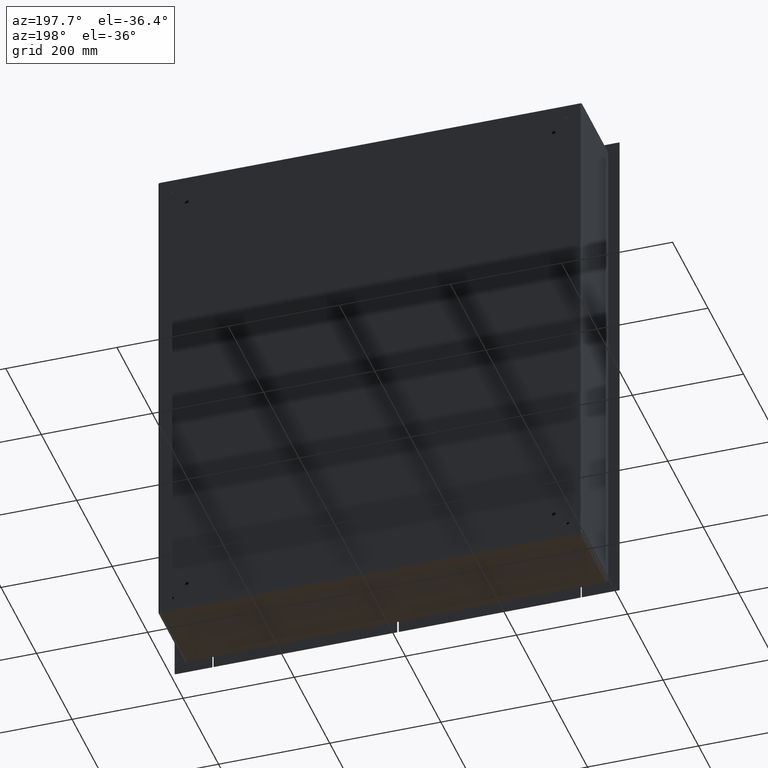
[diagram: clean part render]
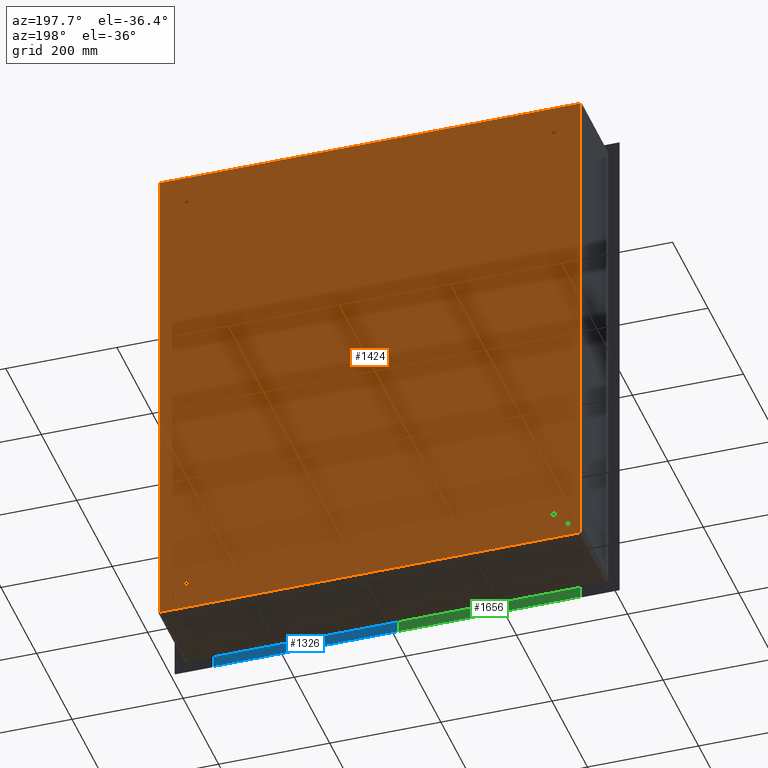
[diagram: same view with three faces highlighted in distinct colors, each labeled with its STEP entity id]
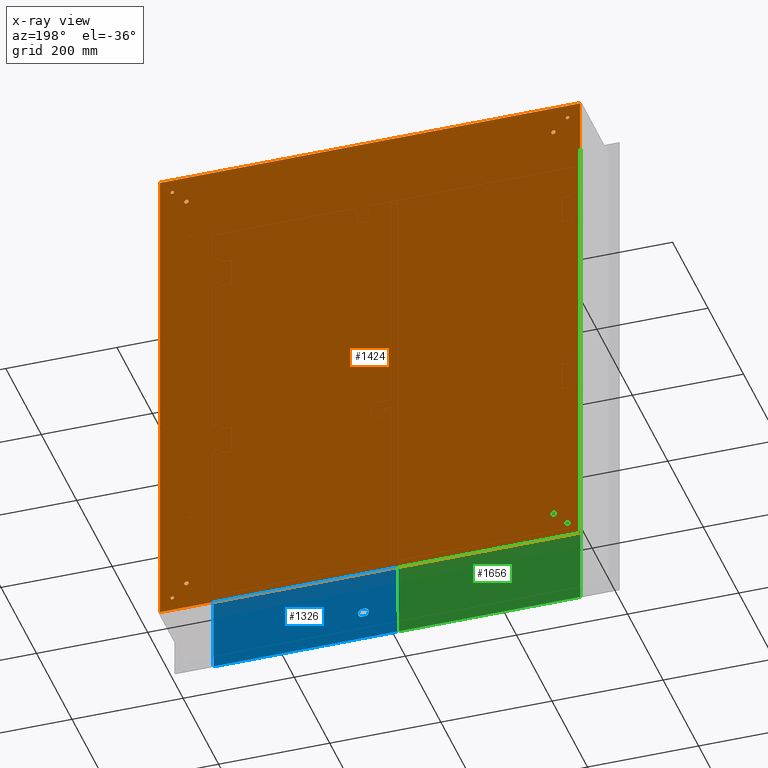
[diagram: x-ray of the same camera — body ghosted, the three highlighted faces saturated]
A machine part, auxiliary view with three faces highlighted in distinct colors.
The next image is the same camera in x-ray (body ghosted, the three faces saturated) — at least one of them is partly hidden behind the body in this view.
Their STEP definitions:

[orange] entity #1424 — the highlighted planar face has unit normal (0, -1, 0).
#1424 = ADVANCED_FACE( '', ( #3018, #3019, #3020, #3021, #3022, #3023, #3024, #3025, #3026 ), #3027, .F. );
#3018 = FACE_BOUND( '', #12370, .T. );
#3019 = FACE_BOUND( '', #12371, .T. );
#3020 = FACE_BOUND( '', #12372, .T. );
#3021 = FACE_BOUND( '', #12373, .T. );
#3022 = FACE_BOUND( '', #12374, .T. );
#3023 = FACE_BOUND( '', #12375, .T. );
#3024 = FACE_BOUND( '', #12376, .T. );
#3025 = FACE_BOUND( '', #12377, .T. );
#3026 = FACE_OUTER_BOUND( '', #12378, .T. );
#3027 = PLANE( '', #12379 );
#12370 = EDGE_LOOP( '', ( #35182 ) );
#12371 = EDGE_LOOP( '', ( #35183 ) );
#12372 = EDGE_LOOP( '', ( #35184 ) );
#12373 = EDGE_LOOP( '', ( #35185 ) );
#12374 = EDGE_LOOP( '', ( #35186 ) );
#12375 = EDGE_LOOP( '', ( #35187 ) );
#12376 = EDGE_LOOP( '', ( #35188 ) );
#12377 = EDGE_LOOP( '', ( #35189 ) );
#12378 = EDGE_LOOP( '', ( #35190, #35191, #35192, #35193 ) );
#12379 = AXIS2_PLACEMENT_3D( '', #35194, #35195, #35196 );
#35182 = ORIENTED_EDGE( '', *, *, #39561, .F. );
#35183 = ORIENTED_EDGE( '', *, *, #39097, .F. );
#35184 = ORIENTED_EDGE( '', *, *, #39677, .F. );
#35185 = ORIENTED_EDGE( '', *, *, #39678, .F. );
#35186 = ORIENTED_EDGE( '', *, *, #39679, .F. );
#35187 = ORIENTED_EDGE( '', *, *, #39680, .F. );
#35188 = ORIENTED_EDGE( '', *, *, #39681, .F. );
#35189 = ORIENTED_EDGE( '', *, *, #39559, .F. );
#35190 = ORIENTED_EDGE( '', *, *, #39682, .F. );
#35191 = ORIENTED_EDGE( '', *, *, #39683, .T. );
#35192 = ORIENTED_EDGE( '', *, *, #39483, .F. );
#35193 = ORIENTED_EDGE( '', *, *, #39503, .T. );
#35194 = CARTESIAN_POINT( '', ( 0.000000000000000, 0.000000000000000, 0.000000000000000 ) );
#35195 = DIRECTION( '', ( 0.000000000000000, -1.00000000000000, 0.000000000000000 ) );
#35196 = DIRECTION( '', ( 0.000000000000000, 0.000000000000000, -1.00000000000000 ) );
#39097 = EDGE_CURVE( '', #41266, #41266, #41267, .F. );
#39483 = EDGE_CURVE( '', #41928, #41930, #41931, .T. );
#39503 = EDGE_CURVE( '', #41928, #41960, #41961, .T. );
#39559 = EDGE_CURVE( '', #42049, #42049, #42050, .F. );
#39561 = EDGE_CURVE( '', #42052, #42052, #42053, .F. );
#39677 = EDGE_CURVE( '', #42233, #42233, #42234, .F. );
#39678 = EDGE_CURVE( '', #42235, #42235, #42236, .F. );
#39679 = EDGE_CURVE( '', #42237, #42237, #42238, .F. );
#39680 = EDGE_CURVE( '', #42239, #42239, #42240, .F. );
#39681 = EDGE_CURVE( '', #42241, #42241, #42242, .F. );
#39682 = EDGE_CURVE( '', #42243, #41960, #42244, .T. );
#39683 = EDGE_CURVE( '', #42243, #41930, #42245, .T. );
#41266 = VERTEX_POINT( '', #44664 );
#41267 = CIRCLE( '', #44665, 3.96240000000000 );
#41928 = VERTEX_POINT( '', #46141 );
#41930 = VERTEX_POINT( '', #46143 );
#41931 = LINE( '', #46144, #46145 );
#41960 = VERTEX_POINT( '', #46202 );
#41961 = LINE( '', #46203, #46204 );
#42049 = VERTEX_POINT( '', #46400 );
#42050 = CIRCLE( '', #46401, 3.17500000000000 );
#42052 = VERTEX_POINT( '', #46403 );
#42053 = CIRCLE( '', #46404, 3.96240000000000 );
#42233 = VERTEX_POINT( '', #46862 );
#42234 = CIRCLE( '', #46863, 3.96240000000000 );
#42235 = VERTEX_POINT( '', #46864 );
#42236 = CIRCLE( '', #46865, 3.96240000000000 );
#42237 = VERTEX_POINT( '', #46866 );
#42238 = CIRCLE( '', #46867, 3.17500000000000 );
#42239 = VERTEX_POINT( '', #46868 );
#42240 = CIRCLE( '', #46869, 3.17500000000000 );
#42241 = VERTEX_POINT( '', #46870 );
#42242 = CIRCLE( '', #46871, 3.17500000000000 );
#42243 = VERTEX_POINT( '', #46872 );
#42244 = LINE( '', #46873, #46874 );
#42245 = LINE( '', #46875, #46876 );
#44664 = CARTESIAN_POINT( '', ( 330.200000000000, 0.000000000000000, -410.362400000000 ) );
#44665 = AXIS2_PLACEMENT_3D( '', #50587, #50588, #50589 );
#46141 = CARTESIAN_POINT( '', ( 378.282200000000, 0.000000000000000, 457.200000000000 ) );
#46143 = CARTESIAN_POINT( '', ( -378.282200000000, 0.000000000000000, 457.200000000000 ) );
#46144 = CARTESIAN_POINT( '', ( 381.000000000000, 0.000000000000000, 457.200000000000 ) );
#46145 = VECTOR( '', #51004, 1000.00000000000 );
#46202 = CARTESIAN_POINT( '', ( 378.282200000000, 0.000000000000000, -457.200000000000 ) );
#46203 = CARTESIAN_POINT( '', ( 378.282200000000, 0.000000000000000, 457.200000000000 ) );
#46204 = VECTOR( '', #51019, 1000.00000000000 );
#46400 = CARTESIAN_POINT( '', ( -355.600000000000, 0.000000000000000, -434.975000000000 ) );
#46401 = AXIS2_PLACEMENT_3D( '', #51074, #51075, #51076 );
#46403 = CARTESIAN_POINT( '', ( 330.200000000000, 0.000000000000000, 402.437600000000 ) );
#46404 = AXIS2_PLACEMENT_3D( '', #51077, #51078, #51079 );
#46862 = CARTESIAN_POINT( '', ( -330.200000000000, 0.000000000000000, 402.437600000000 ) );
#46863 = AXIS2_PLACEMENT_3D( '', #51181, #51182, #51183 );
#46864 = CARTESIAN_POINT( '', ( -330.200000000000, 0.000000000000000, -410.362400000000 ) );
#46865 = AXIS2_PLACEMENT_3D( '', #51184, #51185, #51186 );
#46866 = CARTESIAN_POINT( '', ( 355.600000000000, 0.000000000000000, 428.625000000000 ) );
#46867 = AXIS2_PLACEMENT_3D( '', #51187, #51188, #51189 );
#46868 = CARTESIAN_POINT( '', ( 355.600000000000, 0.000000000000000, -434.975000000000 ) );
#46869 = AXIS2_PLACEMENT_3D( '', #51190, #51191, #51192 );
#46870 = CARTESIAN_POINT( '', ( -355.600000000000, 0.000000000000000, 428.625000000000 ) );
#46871 = AXIS2_PLACEMENT_3D( '', #51193, #51194, #51195 );
#46872 = CARTESIAN_POINT( '', ( -378.282200000000, 0.000000000000000, -457.200000000000 ) );
#46873 = CARTESIAN_POINT( '', ( -381.000000000000, 0.000000000000000, -457.200000000000 ) );
#46874 = VECTOR( '', #51196, 1000.00000000000 );
#46875 = CARTESIAN_POINT( '', ( -378.282200000000, 0.000000000000000, -457.200000000000 ) );
#46876 = VECTOR( '', #51197, 1000.00000000000 );
#50587 = CARTESIAN_POINT( '', ( 330.200000000000, 0.000000000000000, -406.400000000000 ) );
#50588 = DIRECTION( '', ( 0.000000000000000, -1.00000000000000, 0.000000000000000 ) );
#50589 = DIRECTION( '', ( 0.000000000000000, 0.000000000000000, -1.00000000000000 ) );
#51004 = DIRECTION( '', ( -1.00000000000000, 0.000000000000000, 0.000000000000000 ) );
#51019 = DIRECTION( '', ( 0.000000000000000, 0.000000000000000, -1.00000000000000 ) );
#51074 = CARTESIAN_POINT( '', ( -355.600000000000, 0.000000000000000, -431.800000000000 ) );
#51075 = DIRECTION( '', ( 0.000000000000000, -1.00000000000000, 0.000000000000000 ) );
#51076 = DIRECTION( '', ( 0.000000000000000, 0.000000000000000, -1.00000000000000 ) );
#51077 = CARTESIAN_POINT( '', ( 330.200000000000, 0.000000000000000, 406.400000000000 ) );
#51078 = DIRECTION( '', ( 0.000000000000000, -1.00000000000000, 0.000000000000000 ) );
#51079 = DIRECTION( '', ( 0.000000000000000, 0.000000000000000, -1.00000000000000 ) );
#51181 = CARTESIAN_POINT( '', ( -330.200000000000, 0.000000000000000, 406.400000000000 ) );
#51182 = DIRECTION( '', ( 0.000000000000000, -1.00000000000000, 0.000000000000000 ) );
#51183 = DIRECTION( '', ( 0.000000000000000, 0.000000000000000, -1.00000000000000 ) );
#51184 = CARTESIAN_POINT( '', ( -330.200000000000, 0.000000000000000, -406.400000000000 ) );
#51185 = DIRECTION( '', ( 0.000000000000000, -1.00000000000000, 0.000000000000000 ) );
#51186 = DIRECTION( '', ( 0.000000000000000, 0.000000000000000, -1.00000000000000 ) );
#51187 = CARTESIAN_POINT( '', ( 355.600000000000, 0.000000000000000, 431.800000000000 ) );
#51188 = DIRECTION( '', ( 0.000000000000000, -1.00000000000000, 0.000000000000000 ) );
#51189 = DIRECTION( '', ( 0.000000000000000, 0.000000000000000, -1.00000000000000 ) );
#51190 = CARTESIAN_POINT( '', ( 355.600000000000, 0.000000000000000, -431.800000000000 ) );
#51191 = DIRECTION( '', ( 0.000000000000000, -1.00000000000000, 0.000000000000000 ) );
#51192 = DIRECTION( '', ( 0.000000000000000, 0.000000000000000, -1.00000000000000 ) );
#51193 = CARTESIAN_POINT( '', ( -355.600000000000, 0.000000000000000, 431.800000000000 ) );
#51194 = DIRECTION( '', ( 0.000000000000000, -1.00000000000000, 0.000000000000000 ) );
#51195 = DIRECTION( '', ( 0.000000000000000, 0.000000000000000, -1.00000000000000 ) );
#51196 = DIRECTION( '', ( 1.00000000000000, 0.000000000000000, 0.000000000000000 ) );
#51197 = DIRECTION( '', ( 0.000000000000000, 0.000000000000000, 1.00000000000000 ) );

[blue] entity #1326 — the highlighted planar face has unit normal (-0, -1, -0).
#1326 = ADVANCED_FACE( '', ( #2851, #2852, #2853, #2854 ), #2855, .F. );
#2851 = FACE_BOUND( '', #9209, .T. );
#2852 = FACE_BOUND( '', #9210, .T. );
#2853 = FACE_BOUND( '', #9211, .T. );
#2854 = FACE_OUTER_BOUND( '', #9212, .T. );
#2855 = PLANE( '', #9213 );
#9209 = EDGE_LOOP( '', ( #34755, #34756, #34757, #34758 ) );
#9210 = EDGE_LOOP( '', ( #34759, #34760, #34761, #34762 ) );
#9211 = EDGE_LOOP( '', ( #34763, #34764, #34765, #34766 ) );
#9212 = EDGE_LOOP( '', ( #34767, #34768, #34769, #34770 ) );
#9213 = AXIS2_PLACEMENT_3D( '', #34771, #34772, #34773 );
#34755 = ORIENTED_EDGE( '', *, *, #39416, .T. );
#34756 = ORIENTED_EDGE( '', *, *, #39417, .T. );
#34757 = ORIENTED_EDGE( '', *, *, #39118, .T. );
#34758 = ORIENTED_EDGE( '', *, *, #39418, .T. );
#34759 = ORIENTED_EDGE( '', *, *, #39419, .T. );
#34760 = ORIENTED_EDGE( '', *, *, #39420, .T. );
#34761 = ORIENTED_EDGE( '', *, *, #39421, .T. );
#34762 = ORIENTED_EDGE( '', *, *, #39128, .T. );
#34763 = ORIENTED_EDGE( '', *, *, #39422, .T. );
#34764 = ORIENTED_EDGE( '', *, *, #39423, .T. );
#34765 = ORIENTED_EDGE( '', *, *, #39424, .T. );
#34766 = ORIENTED_EDGE( '', *, *, #39425, .T. );
#34767 = ORIENTED_EDGE( '', *, *, #39426, .F. );
#34768 = ORIENTED_EDGE( '', *, *, #39427, .F. );
#34769 = ORIENTED_EDGE( '', *, *, #39428, .F. );
#34770 = ORIENTED_EDGE( '', *, *, #39236, .F. );
#34771 = CARTESIAN_POINT( '', ( 0.000000000000000, 1.90500000000000, 0.000000000000000 ) );
#34772 = DIRECTION( '', ( 0.000000000000000, -1.00000000000000, 0.000000000000000 ) );
#34773 = DIRECTION( '', ( 0.000000000000000, 0.000000000000000, -1.00000000000000 ) );
#39118 = EDGE_CURVE( '', #41297, #41302, #41304, .T. );
#39128 = EDGE_CURVE( '', #41315, #41320, #41322, .T. );
#39236 = EDGE_CURVE( '', #41504, #41506, #41507, .T. );
#39416 = EDGE_CURVE( '', #41810, #41811, #41812, .T. );
#39417 = EDGE_CURVE( '', #41811, #41297, #41813, .T. );
#39418 = EDGE_CURVE( '', #41302, #41810, #41814, .T. );
#39419 = EDGE_CURVE( '', #41320, #41815, #41816, .T. );
#39420 = EDGE_CURVE( '', #41815, #41817, #41818, .T. );
#39421 = EDGE_CURVE( '', #41817, #41315, #41819, .T. );
#39422 = EDGE_CURVE( '', #41820, #41821, #41822, .T. );
#39423 = EDGE_CURVE( '', #41821, #41823, #41824, .T. );
#39424 = EDGE_CURVE( '', #41823, #41825, #41826, .T. );
#39425 = EDGE_CURVE( '', #41825, #41820, #41827, .T. );
#39426 = EDGE_CURVE( '', #41828, #41504, #41829, .T. );
#39427 = EDGE_CURVE( '', #41830, #41828, #41831, .T. );
#39428 = EDGE_CURVE( '', #41506, #41830, #41832, .T. );
#41297 = VERTEX_POINT( '', #44704 );
#41302 = VERTEX_POINT( '', #44710 );
#41304 = CIRCLE( '', #44713, 9.71550000000000 );
#41315 = VERTEX_POINT( '', #44724 );
#41320 = VERTEX_POINT( '', #44730 );
#41322 = CIRCLE( '', #44733, 9.71550000000000 );
#41504 = VERTEX_POINT( '', #45179 );
#41506 = VERTEX_POINT( '', #45182 );
#41507 = LINE( '', #45183, #45184 );
#41810 = VERTEX_POINT( '', #45954 );
#41811 = VERTEX_POINT( '', #45955 );
#41812 = CIRCLE( '', #45956, 9.71550000000000 );
#41813 = LINE( '', #45957, #45958 );
#41814 = LINE( '', #45959, #45960 );
#41815 = VERTEX_POINT( '', #45961 );
#41816 = LINE( '', #45962, #45963 );
#41817 = VERTEX_POINT( '', #45964 );
#41818 = CIRCLE( '', #45965, 9.71550000000000 );
#41819 = LINE( '', #45966, #45967 );
#41820 = VERTEX_POINT( '', #45968 );
#41821 = VERTEX_POINT( '', #45969 );
#41822 = LINE( '', #45970, #45971 );
#41823 = VERTEX_POINT( '', #45972 );
#41824 = CIRCLE( '', #45973, 9.71550000000000 );
#41825 = VERTEX_POINT( '', #45974 );
#41826 = LINE( '', #45975, #45976 );
#41827 = CIRCLE( '', #45977, 9.71550000000000 );
#41828 = VERTEX_POINT( '', #45978 );
#41829 = LINE( '', #45979, #45980 );
#41830 = VERTEX_POINT( '', #45981 );
#41831 = LINE( '', #45982, #45983 );
#41832 = LINE( '', #45984, #45985 );
#44704 = CARTESIAN_POINT( '', ( 99.4527301599786, 1.90500000000005, 430.403000000000 ) );
#44710 = CARTESIAN_POINT( '', ( 99.4527301599787, 1.90500000000005, 414.147000000000 ) );
#44713 = AXIS2_PLACEMENT_3D( '', #50616, #50617, #50618 );
#44724 = CARTESIAN_POINT( '', ( 110.097269840021, 1.90500000000005, -430.403000000000 ) );
#44730 = CARTESIAN_POINT( '', ( 110.097269840021, 1.90500000000005, -414.147000000000 ) );
#44733 = AXIS2_PLACEMENT_3D( '', #50636, #50637, #50638 );
#45179 = CARTESIAN_POINT( '', ( -165.100000000000, 1.90500000000000, -476.250000000000 ) );
#45182 = CARTESIAN_POINT( '', ( 165.100000000000, 1.90500000000000, -476.250000000000 ) );
#45183 = CARTESIAN_POINT( '', ( -165.100000000000, 1.90500000000000, -476.250000000000 ) );
#45184 = VECTOR( '', #50737, 1000.00000000000 );
#45954 = CARTESIAN_POINT( '', ( 110.097269840021, 1.90500000000005, 414.147000000000 ) );
#45955 = CARTESIAN_POINT( '', ( 110.097269840021, 1.90500000000005, 430.403000000000 ) );
#45956 = AXIS2_PLACEMENT_3D( '', #50905, #50906, #50907 );
#45957 = CARTESIAN_POINT( '', ( 0.000000000000000, 1.90500000000000, 430.403000000000 ) );
#45958 = VECTOR( '', #50908, 1000.00000000000 );
#45959 = CARTESIAN_POINT( '', ( 0.000000000000000, 1.90500000000000, 414.147000000000 ) );
#45960 = VECTOR( '', #50909, 1000.00000000000 );
#45961 = CARTESIAN_POINT( '', ( 99.4527301599787, 1.90500000000005, -414.147000000000 ) );
#45962 = CARTESIAN_POINT( '', ( 0.000000000000000, 1.90500000000000, -414.147000000000 ) );
#45963 = VECTOR( '', #50910, 1000.00000000000 );
#45964 = CARTESIAN_POINT( '', ( 99.4527301599787, 1.90500000000000, -430.403000000000 ) );
#45965 = AXIS2_PLACEMENT_3D( '', #50911, #50912, #50913 );
#45966 = CARTESIAN_POINT( '', ( 0.000000000000000, 1.90500000000000, -430.403000000000 ) );
#45967 = VECTOR( '', #50914, 1000.00000000000 );
#45968 = CARTESIAN_POINT( '', ( 138.303000000000, 1.90500000000005, -5.32226984002143 ) );
#45969 = CARTESIAN_POINT( '', ( 138.303000000000, 1.90500000000005, 5.32226984002154 ) );
#45970 = CARTESIAN_POINT( '', ( 138.303000000000, 1.90500000000000, 0.000000000000000 ) );
#45971 = VECTOR( '', #50915, 1000.00000000000 );
#45972 = CARTESIAN_POINT( '', ( 122.047000000000, 1.90500000000000, 5.32226984002154 ) );
#45973 = AXIS2_PLACEMENT_3D( '', #50916, #50917, #50918 );
#45974 = CARTESIAN_POINT( '', ( 122.047000000000, 1.90500000000005, -5.32226984002143 ) );
#45975 = CARTESIAN_POINT( '', ( 122.047000000000, 1.90500000000000, 0.000000000000000 ) );
#45976 = VECTOR( '', #50919, 1000.00000000000 );
#45977 = AXIS2_PLACEMENT_3D( '', #50920, #50921, #50922 );
#45978 = CARTESIAN_POINT( '', ( -165.100000000000, 1.90500000000000, 476.250000000000 ) );
#45979 = CARTESIAN_POINT( '', ( -165.100000000000, 1.90500000000000, 476.250000000000 ) );
#45980 = VECTOR( '', #50923, 1000.00000000000 );
#45981 = CARTESIAN_POINT( '', ( 165.100000000000, 1.90500000000000, 476.250000000000 ) );
#45982 = CARTESIAN_POINT( '', ( 165.100000000000, 1.90500000000000, 476.250000000000 ) );
#45983 = VECTOR( '', #50924, 1000.00000000000 );
#45984 = CARTESIAN_POINT( '', ( 165.100000000000, 1.90500000000000, -476.250000000000 ) );
#45985 = VECTOR( '', #50925, 1000.00000000000 );
#50616 = CARTESIAN_POINT( '', ( 104.775000000000, 1.90500000000005, 422.275000000000 ) );
#50617 = DIRECTION( '', ( 0.000000000000000, -1.00000000000000, 0.000000000000000 ) );
#50618 = DIRECTION( '', ( 0.000000000000000, 0.000000000000000, -1.00000000000000 ) );
#50636 = CARTESIAN_POINT( '', ( 104.775000000000, 1.90500000000005, -422.275000000000 ) );
#50637 = DIRECTION( '', ( 0.000000000000000, -1.00000000000000, 0.000000000000000 ) );
#50638 = DIRECTION( '', ( 0.000000000000000, 0.000000000000000, -1.00000000000000 ) );
#50737 = DIRECTION( '', ( 1.00000000000000, 0.000000000000000, 0.000000000000000 ) );
#50905 = CARTESIAN_POINT( '', ( 104.775000000000, 1.90500000000005, 422.275000000000 ) );
#50906 = DIRECTION( '', ( 0.000000000000000, -1.00000000000000, 0.000000000000000 ) );
#50907 = DIRECTION( '', ( 0.000000000000000, 0.000000000000000, -1.00000000000000 ) );
#50908 = DIRECTION( '', ( -1.00000000000000, 0.000000000000000, 0.000000000000000 ) );
#50909 = DIRECTION( '', ( 1.00000000000000, 0.000000000000000, 0.000000000000000 ) );
#50910 = DIRECTION( '', ( -1.00000000000000, 0.000000000000000, 0.000000000000000 ) );
#50911 = CARTESIAN_POINT( '', ( 104.775000000000, 1.90500000000005, -422.275000000000 ) );
#50912 = DIRECTION( '', ( 0.000000000000000, -1.00000000000000, 0.000000000000000 ) );
#50913 = DIRECTION( '', ( 0.000000000000000, 0.000000000000000, -1.00000000000000 ) );
#50914 = DIRECTION( '', ( 1.00000000000000, 0.000000000000000, 0.000000000000000 ) );
#50915 = DIRECTION( '', ( 0.000000000000000, 0.000000000000000, 1.00000000000000 ) );
#50916 = CARTESIAN_POINT( '', ( 130.175000000000, 1.90500000000005, 5.55111512312578E-014 ) );
#50917 = DIRECTION( '', ( 0.000000000000000, -1.00000000000000, 0.000000000000000 ) );
#50918 = DIRECTION( '', ( 0.000000000000000, 0.000000000000000, -1.00000000000000 ) );
#50919 = DIRECTION( '', ( 0.000000000000000, 0.000000000000000, -1.00000000000000 ) );
#50920 = CARTESIAN_POINT( '', ( 130.175000000000, 1.90500000000005, 5.55111512312578E-014 ) );
#50921 = DIRECTION( '', ( 0.000000000000000, -1.00000000000000, 0.000000000000000 ) );
#50922 = DIRECTION( '', ( 0.000000000000000, 0.000000000000000, -1.00000000000000 ) );
#50923 = DIRECTION( '', ( 0.000000000000000, 0.000000000000000, -1.00000000000000 ) );
#50924 = DIRECTION( '', ( -1.00000000000000, 0.000000000000000, 0.000000000000000 ) );
#50925 = DIRECTION( '', ( 0.000000000000000, 0.000000000000000, 1.00000000000000 ) );

[green] entity #1656 — the highlighted planar face has unit normal (0, -1, 0).
#1656 = ADVANCED_FACE( '', ( #3394 ), #3395, .F. );
#3394 = FACE_OUTER_BOUND( '', #17125, .T. );
#3395 = PLANE( '', #17126 );
#17125 = EDGE_LOOP( '', ( #36132, #36133, #36134, #36135, #36136, #36137, #36138, #36139 ) );
#17126 = AXIS2_PLACEMENT_3D( '', #36140, #36141, #36142 );
#36132 = ORIENTED_EDGE( '', *, *, #40149, .F. );
#36133 = ORIENTED_EDGE( '', *, *, #38956, .T. );
#36134 = ORIENTED_EDGE( '', *, *, #39038, .T. );
#36135 = ORIENTED_EDGE( '', *, *, #40150, .F. );
#36136 = ORIENTED_EDGE( '', *, *, #40151, .F. );
#36137 = ORIENTED_EDGE( '', *, *, #40152, .F. );
#36138 = ORIENTED_EDGE( '', *, *, #39796, .T. );
#36139 = ORIENTED_EDGE( '', *, *, #40153, .T. );
#36140 = CARTESIAN_POINT( '', ( 0.000000000000000, 1.90500000000000, 0.000000000000000 ) );
#36141 = DIRECTION( '', ( 0.000000000000000, -1.00000000000000, 0.000000000000000 ) );
#36142 = DIRECTION( '', ( 0.000000000000000, 0.000000000000000, -1.00000000000000 ) );
#38956 = EDGE_CURVE( '', #41016, #41014, #41017, .F. );
#39038 = EDGE_CURVE( '', #41014, #41160, #41162, .T. );
#39796 = EDGE_CURVE( '', #42423, #42424, #42425, .T. );
#40149 = EDGE_CURVE( '', #41016, #42944, #42945, .T. );
#40150 = EDGE_CURVE( '', #42946, #41160, #42947, .T. );
#40151 = EDGE_CURVE( '', #42948, #42946, #42949, .T. );
#40152 = EDGE_CURVE( '', #42423, #42948, #42950, .T. );
#40153 = EDGE_CURVE( '', #42424, #42944, #42951, .T. );
#41014 = VERTEX_POINT( '', #44025 );
#41016 = VERTEX_POINT( '', #44028 );
#41017 = LINE( '', #44029, #44030 );
#41160 = VERTEX_POINT( '', #44418 );
#41162 = LINE( '', #44421, #44422 );
#42423 = VERTEX_POINT( '', #47378 );
#42424 = VERTEX_POINT( '', #47379 );
#42425 = LINE( '', #47380, #47381 );
#42944 = VERTEX_POINT( '', #48345 );
#42945 = LINE( '', #48346, #48347 );
#42946 = VERTEX_POINT( '', #48348 );
#42947 = LINE( '', #48349, #48350 );
#42948 = VERTEX_POINT( '', #48351 );
#42949 = LINE( '', #48352, #48353 );
#42950 = LINE( '', #48354, #48355 );
#42951 = LINE( '', #48356, #48357 );
#44025 = CARTESIAN_POINT( '', ( 156.375100000000, 1.90500000000000, -434.975000000000 ) );
#44028 = CARTESIAN_POINT( '', ( 157.104387794597, 1.90500000000000, -434.975000000000 ) );
#44029 = CARTESIAN_POINT( '', ( 0.000000000000000, 1.90500000000000, -434.975000000000 ) );
#44030 = VECTOR( '', #50445, 1000.00000000000 );
#44418 = CARTESIAN_POINT( '', ( 156.375100000000, 1.90500000000000, -476.250000000000 ) );
#44421 = CARTESIAN_POINT( '', ( 156.375100000000, 1.90500000000000, 0.000000000000000 ) );
#44422 = VECTOR( '', #50523, 1000.00000000000 );
#47378 = CARTESIAN_POINT( '', ( 156.375100000000, 1.90500000000000, 476.250000000000 ) );
#47379 = CARTESIAN_POINT( '', ( 156.375100000000, 1.90500000000000, 434.975000000000 ) );
#47380 = CARTESIAN_POINT( '', ( 156.375100000000, 1.90500000000000, 0.000000000000000 ) );
#47381 = VECTOR( '', #51296, 1000.00000000000 );
#48345 = CARTESIAN_POINT( '', ( 157.104387794597, 1.90500000000000, 434.975000000000 ) );
#48346 = CARTESIAN_POINT( '', ( 157.104387794597, 1.90500000000000, -434.975000000000 ) );
#48347 = VECTOR( '', #51667, 1000.00000000000 );
#48348 = CARTESIAN_POINT( '', ( -170.649900000000, 1.90500000000000, -476.250000000000 ) );
#48349 = CARTESIAN_POINT( '', ( -170.649900000000, 1.90500000000000, -476.250000000000 ) );
#48350 = VECTOR( '', #51668, 1000.00000000000 );
#48351 = CARTESIAN_POINT( '', ( -170.649900000000, 1.90500000000000, 476.250000000000 ) );
#48352 = CARTESIAN_POINT( '', ( -170.649900000000, 1.90500000000000, 476.250000000000 ) );
#48353 = VECTOR( '', #51669, 1000.00000000000 );
#48354 = CARTESIAN_POINT( '', ( 170.649900000000, 1.90500000000000, 476.250000000000 ) );
#48355 = VECTOR( '', #51670, 1000.00000000000 );
#48356 = CARTESIAN_POINT( '', ( 0.000000000000000, 1.90500000000000, 434.975000000000 ) );
#48357 = VECTOR( '', #51671, 1000.00000000000 );
#50445 = DIRECTION( '', ( 1.00000000000000, 0.000000000000000, 0.000000000000000 ) );
#50523 = DIRECTION( '', ( 0.000000000000000, 0.000000000000000, -1.00000000000000 ) );
#51296 = DIRECTION( '', ( 0.000000000000000, 0.000000000000000, -1.00000000000000 ) );
#51667 = DIRECTION( '', ( 0.000000000000000, 0.000000000000000, 1.00000000000000 ) );
#51668 = DIRECTION( '', ( 1.00000000000000, 0.000000000000000, 0.000000000000000 ) );
#51669 = DIRECTION( '', ( 0.000000000000000, 0.000000000000000, -1.00000000000000 ) );
#51670 = DIRECTION( '', ( -1.00000000000000, 0.000000000000000, 0.000000000000000 ) );
#51671 = DIRECTION( '', ( 1.00000000000000, 0.000000000000000, 0.000000000000000 ) );